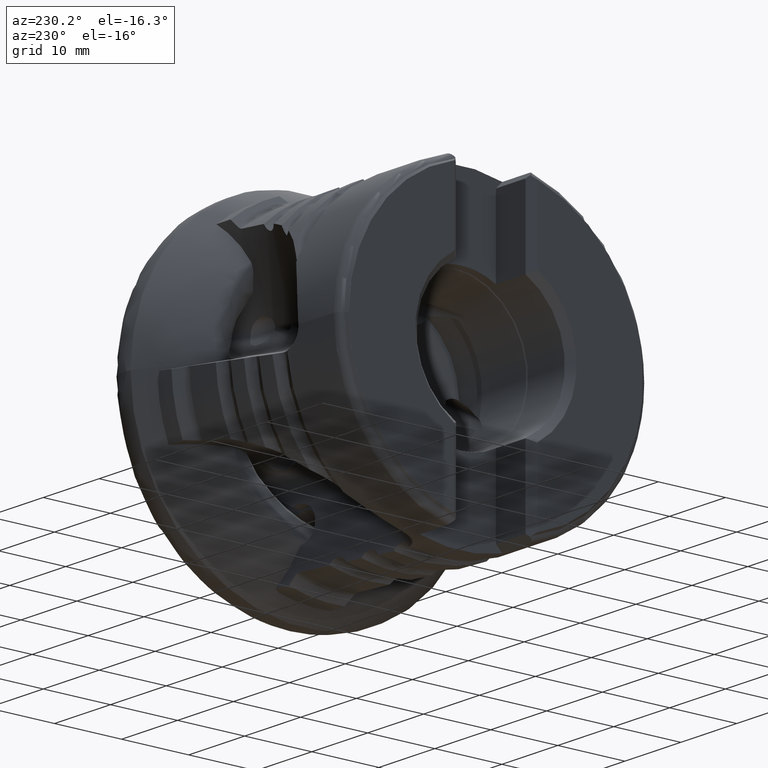
[diagram: clean part render]
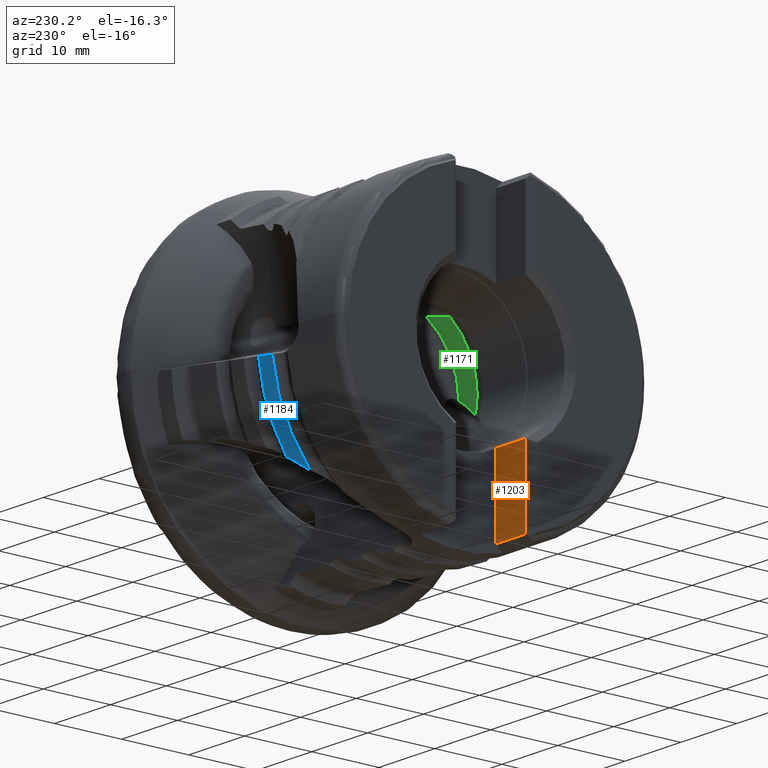
[diagram: same view with three faces highlighted in distinct colors, each labeled with its STEP entity id]
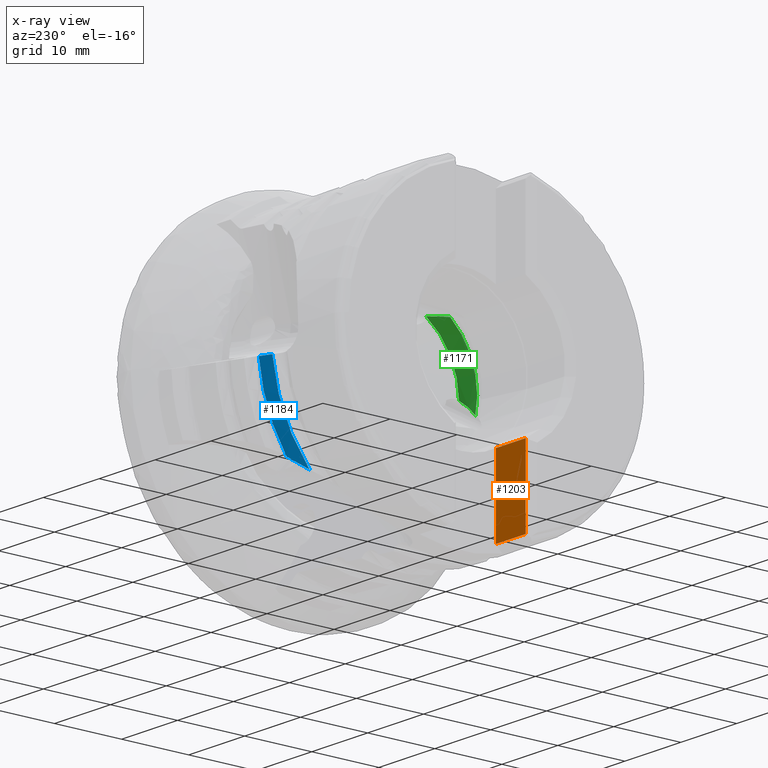
[diagram: x-ray of the same camera — body ghosted, the three highlighted faces saturated]
A machine part, auxiliary view with three faces highlighted in distinct colors.
The next image is the same camera in x-ray (body ghosted, the three faces saturated) — at least one of them is partly hidden behind the body in this view.
Their STEP definitions:

[orange] entity #1203 — the highlighted planar face has unit normal (0, -1, 0).
#856 = VERTEX_POINT ( 'NONE', #5030 ) ;
#937 = VERTEX_POINT ( 'NONE', #11732 ) ;
#1203 = ADVANCED_FACE ( 'NONE', ( #7866 ), #12951, .F. ) ;
#3316 = CARTESIAN_POINT ( 'NONE',  ( 1.701992844354601100E-015, -5.199999999999993100, -9.778324242936514900 ) ) ;
#3317 = DIRECTION ( 'NONE',  ( -1.000000000000000000, 0.0000000000000000000, 0.0000000000000000000 ) ) ;
#4348 = ORIENTED_EDGE ( 'NONE', *, *, #6609, .F. ) ;
#4349 = ORIENTED_EDGE ( 'NONE', *, *, #6611, .T. ) ;
#4350 = ORIENTED_EDGE ( 'NONE', *, *, #6612, .T. ) ;
#4351 = ORIENTED_EDGE ( 'NONE', *, *, #10008, .F. ) ;
#5030 = CARTESIAN_POINT ( 'NONE',  ( -37.99999999999999300, -5.200000000000000200, -9.778324242936511400 ) ) ;
#6609 = EDGE_CURVE ( 'NONE', #11194, #937, #8259, .T. ) ;
#6611 = EDGE_CURVE ( 'NONE', #11194, #11196, #8267, .T. ) ;
#6612 = EDGE_CURVE ( 'NONE', #11196, #856, #8263, .T. ) ;
#6710 = AXIS2_PLACEMENT_3D ( 'NONE', #12945, #12946, #12928 ) ;
#7866 = FACE_OUTER_BOUND ( 'NONE', #13609, .T. ) ;
#8259 = LINE ( 'NONE', #10516, #8266 ) ;
#8263 = LINE ( 'NONE', #10519, #8272 ) ;
#8266 = VECTOR ( 'NONE', #10524, 1000.000000000000000 ) ;
#8267 = LINE ( 'NONE', #10527, #8270 ) ;
#8270 = VECTOR ( 'NONE', #10529, 1000.000000000000000 ) ;
#8272 = VECTOR ( 'NONE', #10530, 1000.000000000000000 ) ;
#8656 = LINE ( 'NONE', #3316, #8658 ) ;
#8658 = VECTOR ( 'NONE', #3317, 1000.000000000000000 ) ;
#8886 = CARTESIAN_POINT ( 'NONE',  ( -32.69999999999999600, -5.200000000000002800, -21.20653861410985600 ) ) ;
#8889 = CARTESIAN_POINT ( 'NONE',  ( -37.99999999999999300, -5.200000000000004600, -21.20653861410985600 ) ) ;
#10008 = EDGE_CURVE ( 'NONE', #937, #856, #8656, .T. ) ;
#10516 = CARTESIAN_POINT ( 'NONE',  ( -32.69999999999999600, -5.200000000000002800, -35.00000000000000000 ) ) ;
#10519 = CARTESIAN_POINT ( 'NONE',  ( -37.99999999999999300, -5.200000000000004600, -35.00000000000000000 ) ) ;
#10524 = DIRECTION ( 'NONE',  ( -0.0000000000000000000, -0.0000000000000000000, 1.000000000000000000 ) ) ;
#10527 = CARTESIAN_POINT ( 'NONE',  ( -37.50000000000000000, -5.200000000000004600, -21.20653861410985600 ) ) ;
#10529 = DIRECTION ( 'NONE',  ( -1.000000000000000000, -3.273063162220391300E-016, 9.092828354860164800E-017 ) ) ;
#10530 = DIRECTION ( 'NONE',  ( -0.0000000000000000000, -0.0000000000000000000, 1.000000000000000000 ) ) ;
#11194 = VERTEX_POINT ( 'NONE', #8886 ) ;
#11196 = VERTEX_POINT ( 'NONE', #8889 ) ;
#11732 = CARTESIAN_POINT ( 'NONE',  ( -32.69999999999999600, -5.200000000000002800, -9.778324242936516700 ) ) ;
#12928 = DIRECTION ( 'NONE',  ( 1.000000000000000000, 3.273063162220391300E-016, 0.0000000000000000000 ) ) ;
#12945 = CARTESIAN_POINT ( 'NONE',  ( -37.99999999999999300, -5.200000000000004600, -35.00000000000000000 ) ) ;
#12946 = DIRECTION ( 'NONE',  ( 3.273063162220391300E-016, -1.000000000000000000, 0.0000000000000000000 ) ) ;
#12951 = PLANE ( 'NONE',  #6710 ) ;
#13609 = EDGE_LOOP ( 'NONE', ( #4348, #4349, #4350, #4351 ) ) ;

[blue] entity #1184 — the highlighted cylindrical surface (partial cylindrical patch) has radius 23 mm, axis along (1, 0, -0).
#1054 = VERTEX_POINT ( 'NONE', #10885 ) ;
#1089 = VERTEX_POINT ( 'NONE', #11058 ) ;
#1184 = ADVANCED_FACE ( 'NONE', ( #7832 ), #7833, .T. ) ;
#3906 = CARTESIAN_POINT ( 'NONE',  ( -26.40192378864668800, -3.233196362471089800E-015, 0.0000000000000000000 ) ) ;
#3907 = DIRECTION ( 'NONE',  ( 1.000000000000000000, 1.224606353822377000E-016, -0.0000000000000000000 ) ) ;
#3908 = DIRECTION ( 'NONE',  ( -1.508455196501571400E-016, 1.000000000000000000, 0.0000000000000000000 ) ) ;
#4947 = B_SPLINE_CURVE_WITH_KNOTS ( 'NONE', 3,
 ( #10865, #10866, #10877, #10878 ),
 .UNSPECIFIED., .F., .F.,
 ( 4, 4 ),
 ( 6.009258394948636900E-018, 0.003356504814239541000 ),
 .UNSPECIFIED. ) ;
#6137 = CARTESIAN_POINT ( 'NONE',  ( -25.60013612336628700, 22.88411984241429700, -2.308070190697009600 ) ) ;
#6142 = CARTESIAN_POINT ( 'NONE',  ( -26.40192378864669100, 22.87358228278169000, -2.408159785565589000 ) ) ;
#6143 = CARTESIAN_POINT ( 'NONE',  ( -23.99999999999999600, -2.939055249173704200E-015, 0.0000000000000000000 ) ) ;
#6144 = DIRECTION ( 'NONE',  ( 1.000000000000000000, 1.224606353822377000E-016, -0.0000000000000000000 ) ) ;
#6145 = DIRECTION ( 'NONE',  ( -1.508455196501571200E-016, 1.000000000000000000, 0.0000000000000000000 ) ) ;
#6155 = CARTESIAN_POINT ( 'NONE',  ( -24.79948336288492800, 22.89400023053564600, -2.207913587846582500 ) ) ;
#6156 = CARTESIAN_POINT ( 'NONE',  ( -24.00000000000000400, 22.90322302149028400, -2.107694291845384300 ) ) ;
#6691 = AXIS2_PLACEMENT_3D ( 'NONE', #7363, #7511, #7506 ) ;
#7016 = AXIS2_PLACEMENT_3D ( 'NONE', #3906, #3907, #3908 ) ;
#7155 = AXIS2_PLACEMENT_3D ( 'NONE', #6143, #6144, #6145 ) ;
#7363 = CARTESIAN_POINT ( 'NONE',  ( 0.0000000000000000000, 0.0000000000000000000, 0.0000000000000000000 ) ) ;
#7364 = VERTEX_POINT ( 'NONE', #10666 ) ;
#7506 = DIRECTION ( 'NONE',  ( -1.224606353822377000E-016, 1.000000000000000000, 0.0000000000000000000 ) ) ;
#7511 = DIRECTION ( 'NONE',  ( 1.000000000000000000, 1.224606353822377000E-016, -0.0000000000000000000 ) ) ;
#7832 = FACE_OUTER_BOUND ( 'NONE', #11335, .T. ) ;
#7833 = CYLINDRICAL_SURFACE ( 'NONE', #6691, 23.00000000000000000 ) ;
#8529 = CIRCLE ( 'NONE', #7016, 23.00000000000000000 ) ;
#8950 = CARTESIAN_POINT ( 'NONE',  ( -24.00000000000000400, 22.90322302149028400, -2.107694291845384300 ) ) ;
#9474 = EDGE_CURVE ( 'NONE', #1089, #7364, #4947, .T. ) ;
#9673 = EDGE_CURVE ( 'NONE', #1089, #1054, #8529, .T. ) ;
#10200 = EDGE_CURVE ( 'NONE', #7364, #11260, #12086, .T. ) ;
#10202 = EDGE_CURVE ( 'NONE', #1054, #11260, #12990, .T. ) ;
#10666 = CARTESIAN_POINT ( 'NONE',  ( -24.00000000000000000, 18.75934915010671500, -13.30739717091176800 ) ) ;
#10865 = CARTESIAN_POINT ( 'NONE',  ( -26.40192378864670500, 17.30713509753390500, -15.14803864253417500 ) ) ;
#10866 = CARTESIAN_POINT ( 'NONE',  ( -25.67021685195878100, 17.86909115424167300, -14.50598526375490000 ) ) ;
#10877 = CARTESIAN_POINT ( 'NONE',  ( -24.86905813266156100, 18.34719635005896200, -13.88840622775350700 ) ) ;
#10878 = CARTESIAN_POINT ( 'NONE',  ( -24.00000000000000000, 18.75934915010671500, -13.30739717091176800 ) ) ;
#10885 = CARTESIAN_POINT ( 'NONE',  ( -26.40192378864669100, 22.87358228278169000, -2.408159785565589000 ) ) ;
#11058 = CARTESIAN_POINT ( 'NONE',  ( -26.40192378864670500, 17.30713509753390500, -15.14803864253417500 ) ) ;
#11260 = VERTEX_POINT ( 'NONE', #8950 ) ;
#11335 = EDGE_LOOP ( 'NONE', ( #11726, #11727, #13032, #13033 ) ) ;
#11726 = ORIENTED_EDGE ( 'NONE', *, *, #9673, .T. ) ;
#11727 = ORIENTED_EDGE ( 'NONE', *, *, #10202, .T. ) ;
#12086 = CIRCLE ( 'NONE', #7155, 23.00000000000000400 ) ;
#12990 =( BOUNDED_CURVE ( )  B_SPLINE_CURVE ( 3, ( #6142, #6137, #6155, #6156 ),
 .UNSPECIFIED., .F., .T. ) 
 B_SPLINE_CURVE_WITH_KNOTS ( ( 4, 4 ),
 ( 4.921653393716823600, 4.934780617293308000 ),
 .UNSPECIFIED. ) 
 CURVE ( )  GEOMETRIC_REPRESENTATION_ITEM ( )  RATIONAL_B_SPLINE_CURVE ( ( 1.000000000000000000, 0.9999856397183191100, 0.9999856397183191100, 1.000000000000000000 ) ) 
 REPRESENTATION_ITEM ( '' )  );
#13032 = ORIENTED_EDGE ( 'NONE', *, *, #10200, .F. ) ;
#13033 = ORIENTED_EDGE ( 'NONE', *, *, #9474, .F. ) ;

[green] entity #1171 — the highlighted cylindrical surface (partial cylindrical patch) has radius 11.15 mm, axis along (1, -0, -0).
#861 = VERTEX_POINT ( 'NONE', #7224 ) ;
#991 = VERTEX_POINT ( 'NONE', #11006 ) ;
#1008 = VERTEX_POINT ( 'NONE', #10964 ) ;
#1022 = VERTEX_POINT ( 'NONE', #10899 ) ;
#1171 = ADVANCED_FACE ( 'NONE', ( #3549 ), #3558, .F. ) ;
#2944 = CARTESIAN_POINT ( 'NONE',  ( -22.22115756940383600, -7.099278267964670900, 8.597833917563452400 ) ) ;
#2954 = CARTESIAN_POINT ( 'NONE',  ( -21.93811470994718200, -7.056658082439560600, 8.633025636754135600 ) ) ;
#2959 = CARTESIAN_POINT ( 'NONE',  ( -21.66081647639585800, -6.998082364314927700, 8.680788611920828400 ) ) ;
#2960 = CARTESIAN_POINT ( 'NONE',  ( -21.10993838186647400, -6.869423294525472700, 8.782953449906283800 ) ) ;
#2961 = CARTESIAN_POINT ( 'NONE',  ( -20.83670717303115400, -6.798405283616661500, 8.838161090564451400 ) ) ;
#2962 = CARTESIAN_POINT ( 'NONE',  ( -20.02074790753993500, -6.572548328877785700, 9.008869624812156500 ) ) ;
#2963 = CARTESIAN_POINT ( 'NONE',  ( -19.48290887306686200, -6.405341093964294100, 9.129118868768252100 ) ) ;
#2964 = CARTESIAN_POINT ( 'NONE',  ( -18.94999999999999200, -6.226056524319201200, 9.249795681850709900 ) ) ;
#3029 = CARTESIAN_POINT ( 'NONE',  ( -19.54505081607486600, -11.15198253137242400, -0.2891358068534635200 ) ) ;
#3030 = CARTESIAN_POINT ( 'NONE',  ( -18.94999999999999200, -11.14979039238471800, 0.06836816426744672700 ) ) ;
#3035 = CARTESIAN_POINT ( 'NONE',  ( -20.11464513205302000, -11.13730215611157200, -0.6820731538606542600 ) ) ;
#3036 = CARTESIAN_POINT ( 'NONE',  ( -20.93386963771958200, -11.07373932672265600, -1.319224431145926900 ) ) ;
#3037 = CARTESIAN_POINT ( 'NONE',  ( -21.20104705014957600, -11.04562790174600700, -1.539617786490617800 ) ) ;
#3038 = CARTESIAN_POINT ( 'NONE',  ( -21.72254156490952000, -10.97202953105222400, -1.997720361318408900 ) ) ;
#3039 = CARTESIAN_POINT ( 'NONE',  ( -21.97800869082943700, -10.92639508438179700, -2.236190485657365100 ) ) ;
#3040 = CARTESIAN_POINT ( 'NONE',  ( -22.22115756940454300, -10.86998629605448500, -2.483122615496000200 ) ) ;
#3549 = FACE_OUTER_BOUND ( 'NONE', #11328, .T. ) ;
#3558 = CYLINDRICAL_SURFACE ( 'NONE', #6679, 11.14999999999999900 ) ;
#3593 = B_SPLINE_CURVE_WITH_KNOTS ( 'NONE', 3,
 ( #3030, #3029, #3035, #3036, #3037, #3038, #3039, #3040 ),
 .UNSPECIFIED., .F., .F.,
 ( 4, 2, 2, 4 ),
 ( 0.01296901478002855300, 0.01508045846240720400, 0.01613618030359653000, 0.01719190214478585500 ),
 .UNSPECIFIED. ) ;
#3614 = B_SPLINE_CURVE_WITH_KNOTS ( 'NONE', 3,
 ( #2944, #2954, #2959, #2960, #2961, #2962, #2963, #2964 ),
 .UNSPECIFIED., .F., .F.,
 ( 4, 2, 2, 4 ),
 ( 0.01494530570479234500, 0.01582700636900131300, 0.01670870703321027800, 0.01847210836162820400 ),
 .UNSPECIFIED. ) ;
#3804 = CARTESIAN_POINT ( 'NONE',  ( -18.94999999999999200, 0.0000000000000000000, 0.0000000000000000000 ) ) ;
#3805 = DIRECTION ( 'NONE',  ( 1.000000000000000000, -0.0000000000000000000, -0.0000000000000000000 ) ) ;
#3806 = DIRECTION ( 'NONE',  ( 0.0000000000000000000, 0.0000000000000000000, -1.000000000000000000 ) ) ;
#3816 = CARTESIAN_POINT ( 'NONE',  ( -22.22115756940393900, 0.0000000000000000000, 0.0000000000000000000 ) ) ;
#3817 = DIRECTION ( 'NONE',  ( 1.000000000000000000, -0.0000000000000000000, -0.0000000000000000000 ) ) ;
#3818 = DIRECTION ( 'NONE',  ( 0.0000000000000000000, 0.0000000000000000000, -1.000000000000000000 ) ) ;
#4588 = DIRECTION ( 'NONE',  ( 1.000000000000000000, -0.0000000000000000000, -0.0000000000000000000 ) ) ;
#4593 = CARTESIAN_POINT ( 'NONE',  ( 0.0000000000000000000, 0.0000000000000000000, 0.0000000000000000000 ) ) ;
#4596 = DIRECTION ( 'NONE',  ( 0.0000000000000000000, 0.0000000000000000000, -1.000000000000000000 ) ) ;
#6679 = AXIS2_PLACEMENT_3D ( 'NONE', #4593, #4588, #4596 ) ;
#7006 = AXIS2_PLACEMENT_3D ( 'NONE', #3804, #3805, #3806 ) ;
#7008 = AXIS2_PLACEMENT_3D ( 'NONE', #3816, #3817, #3818 ) ;
#7224 = CARTESIAN_POINT ( 'NONE',  ( -22.22115756940454300, -10.86998629605448500, -2.483122615496000200 ) ) ;
#8517 = CIRCLE ( 'NONE', #7008, 11.14999999999999900 ) ;
#8518 = CIRCLE ( 'NONE', #7006, 11.14999999999999900 ) ;
#9651 = EDGE_CURVE ( 'NONE', #991, #1008, #8518, .T. ) ;
#9655 = EDGE_CURVE ( 'NONE', #1022, #861, #8517, .T. ) ;
#9946 = EDGE_CURVE ( 'NONE', #1022, #991, #3614, .T. ) ;
#9959 = EDGE_CURVE ( 'NONE', #1008, #861, #3593, .T. ) ;
#10899 = CARTESIAN_POINT ( 'NONE',  ( -22.22115756940383600, -7.099278267964670900, 8.597833917563452400 ) ) ;
#10964 = CARTESIAN_POINT ( 'NONE',  ( -18.94999999999999200, -11.14979039238471800, 0.06836816426744672700 ) ) ;
#11006 = CARTESIAN_POINT ( 'NONE',  ( -18.94999999999999200, -6.226056524319201200, 9.249795681850709900 ) ) ;
#11328 = EDGE_LOOP ( 'NONE', ( #11680, #11681, #11682, #11683 ) ) ;
#11680 = ORIENTED_EDGE ( 'NONE', *, *, #9655, .F. ) ;
#11681 = ORIENTED_EDGE ( 'NONE', *, *, #9946, .T. ) ;
#11682 = ORIENTED_EDGE ( 'NONE', *, *, #9651, .T. ) ;
#11683 = ORIENTED_EDGE ( 'NONE', *, *, #9959, .T. ) ;